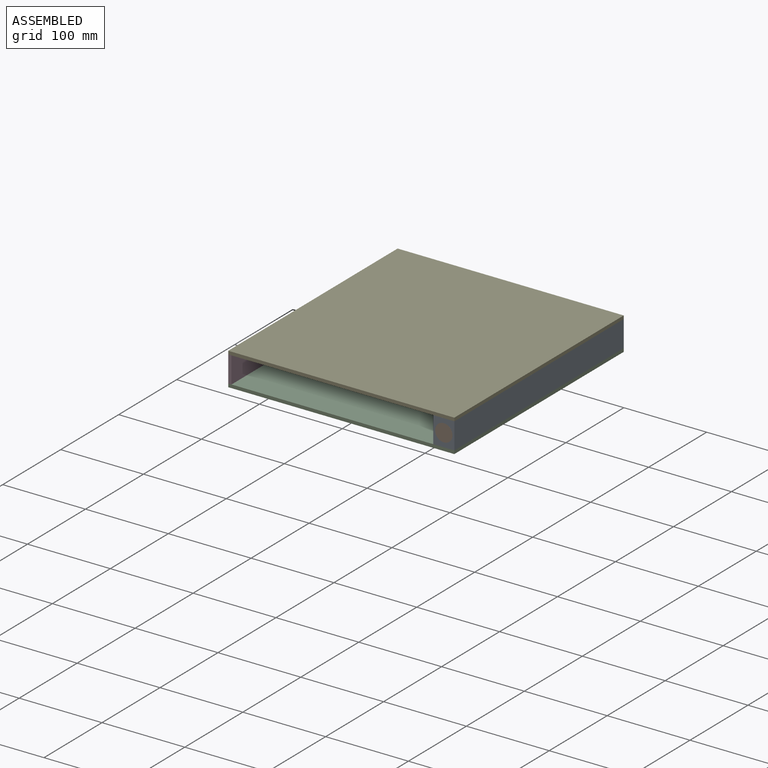
[diagram: assembled view]
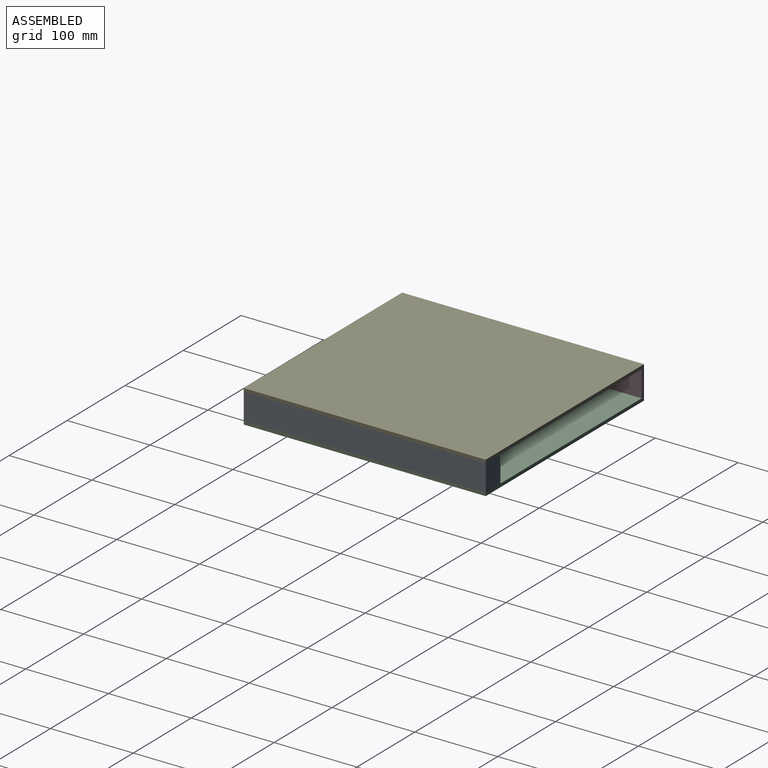
[diagram: assembled view, second angle]
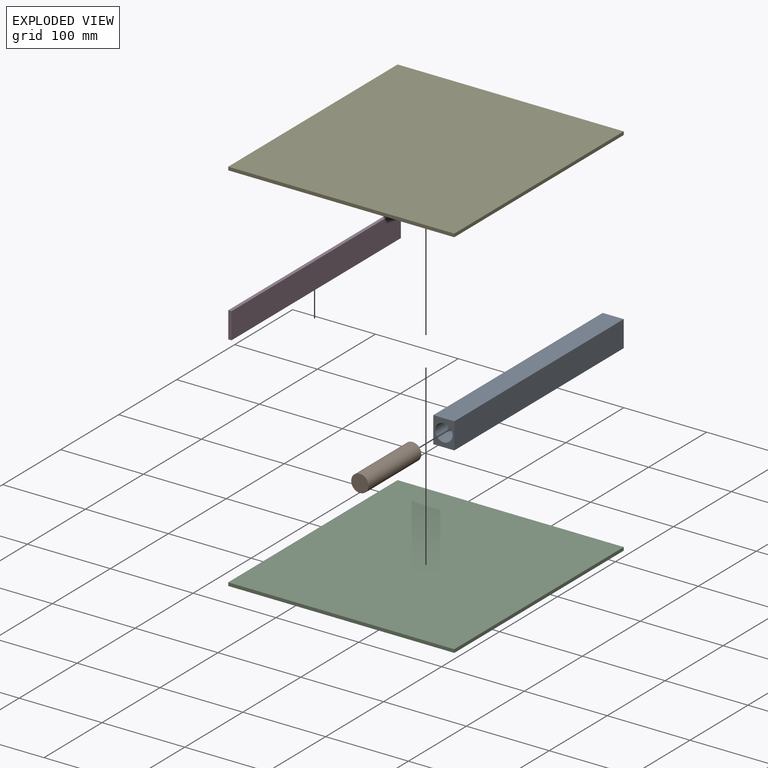
[diagram: exploded view]
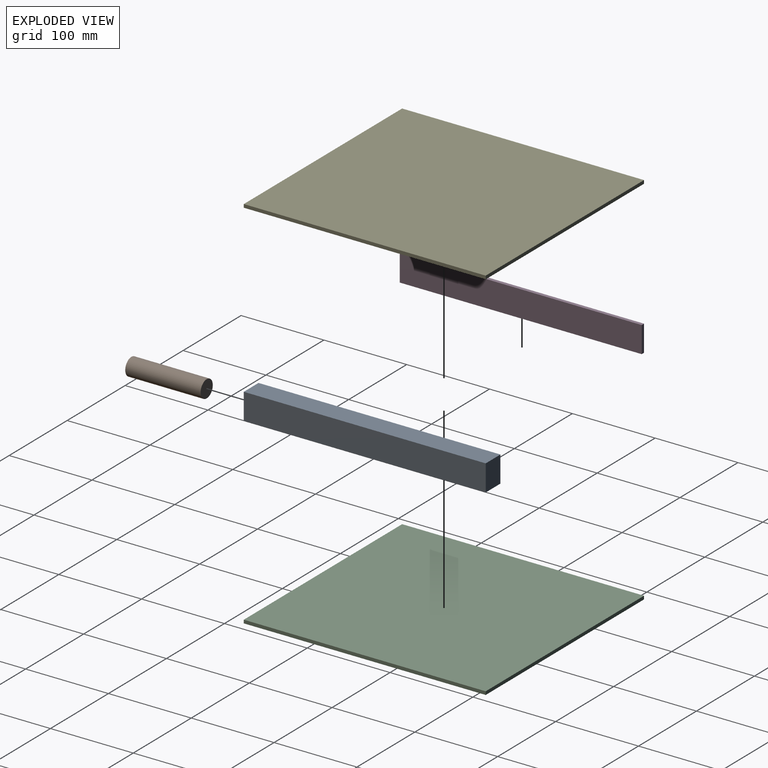
[diagram: exploded view, second angle]
ASSEMBLY  parts=5 mates=4
PART A: 8 faces, bbox 25.4x292.1x31.8 mm
  f0: plane 292.1x25.4mm, normal (0,0,-1), area 7419.3mm2, adj f1,f3,f4,f5
  f1: plane 31.75x25.4mm, normal (0,1,0), area 806.5mm2, adj f0,f2,f4,f5
  f2: plane 292.1x25.4mm, normal (0,0,1), area 7419.3mm2, adj f1,f3,f4,f5
  f3: plane 31.75x25.4mm, normal (0,-1,0), area 460.1mm2, adj f0,f2,f4,f5,f6
  f4: plane 292.1x31.75mm, normal (-1,0,0), area 9274.2mm2, adj f0,f1,f2,f3
  f5: plane 292.1x31.75mm, normal (1,0,0), area 9274.2mm2, adj f0,f1,f2,f3
  f6: cylinder r=10.5mm len=91mm, axis (0,-1,0), area 6003.6mm2, adj f3,f7
  f7: cone r=0mm half-angle=59deg, axis (0,-1,0), area 404.1mm2, adj f6
PART B: 3 faces, bbox 21x91x21 mm
  f0: cylinder r=10.5mm len=91mm, axis (0,1,0), area 6003.6mm2, adj f1,f2
  f1: plane 21x21mm, normal (0,-1,0), area 346.4mm2, adj f0
  f2: plane 21x21mm, normal (0,1,0), area 346.4mm2, adj f0
PART C: 6 faces, bbox 273.1x292.1x4 mm
  f0: plane 273.05x4mm, normal (0,-1,0), area 1092.2mm2, adj f1,f3,f4,f5
  f1: plane 292.1x4mm, normal (1,0,0), area 1168.4mm2, adj f0,f2,f4,f5
  f2: plane 273.05x4mm, normal (0,1,0), area 1092.2mm2, adj f1,f3,f4,f5
  f3: plane 292.1x4mm, normal (-1,0,0), area 1168.4mm2, adj f0,f2,f4,f5
  f4: plane 292.1x273.05mm, normal (0,0,1), area 79757.9mm2, adj f0,f1,f2,f3
  f5: plane 292.1x273.05mm, normal (0,0,-1), area 79757.9mm2, adj f0,f1,f2,f3
PART D: 6 faces, bbox 4x292.1x31.8 mm
  f0: plane 292.1x4mm, normal (0,0,-1), area 1168.4mm2, adj f1,f3,f4,f5
  f1: plane 31.75x4mm, normal (0,1,0), area 127mm2, adj f0,f2,f4,f5
  f2: plane 292.1x4mm, normal (0,0,1), area 1168.4mm2, adj f1,f3,f4,f5
  f3: plane 31.75x4mm, normal (0,-1,0), area 127mm2, adj f0,f2,f4,f5
  f4: plane 292.1x31.75mm, normal (1,0,0), area 9274.2mm2, adj f0,f1,f2,f3
  f5: plane 292.1x31.75mm, normal (-1,0,0), area 9274.2mm2, adj f0,f1,f2,f3
PART E: same geometry as C
PLACE A t=(173.95,69.04,-51.48)mm
PLACE B t=(186.65,13.99,-51.48)mm
PLACE C t=(62.82,69.04,-71.36)mm
PLACE D t=(-73.7,69.04,-51.48)mm
PLACE E t=(62.82,69.04,-35.61)mm
MATE revolute D.f2 <-> E.f5  axis (0,0,1) through (-73.7,-77.01,-35.61)mm
MATE revolute D.f0 <-> C.f4  axis (0,0,-1) through (-73.7,-77.01,-67.36)mm
MATE fastened B.f0 <-> A.f6  axis (0,-1,0) through (186.65,-77.01,-51.48)mm
MATE fastened A.f2 <-> E.f5  axis (0,0,1) through (199.35,-77.01,-35.61)mm
